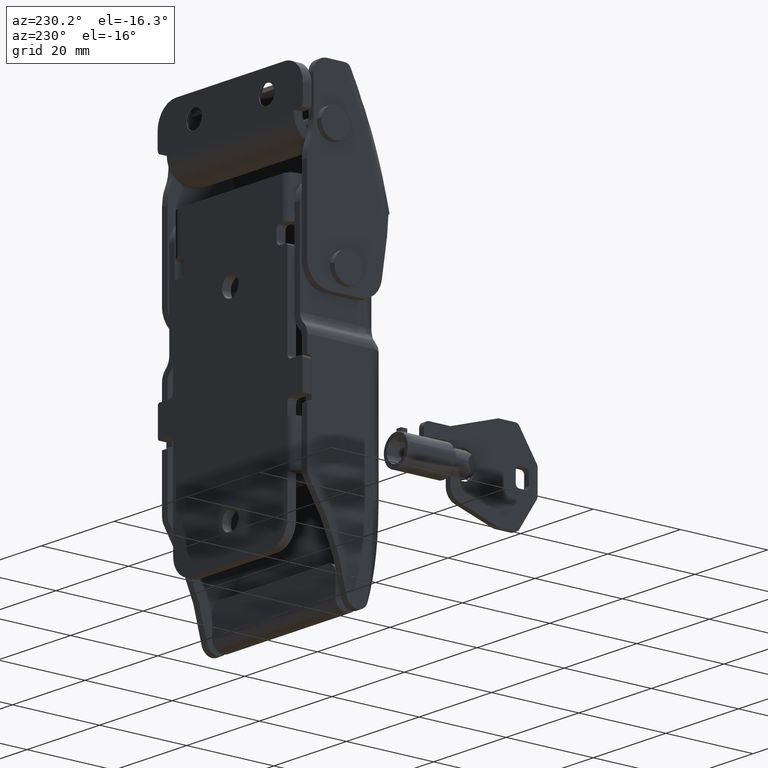
[diagram: clean part render]
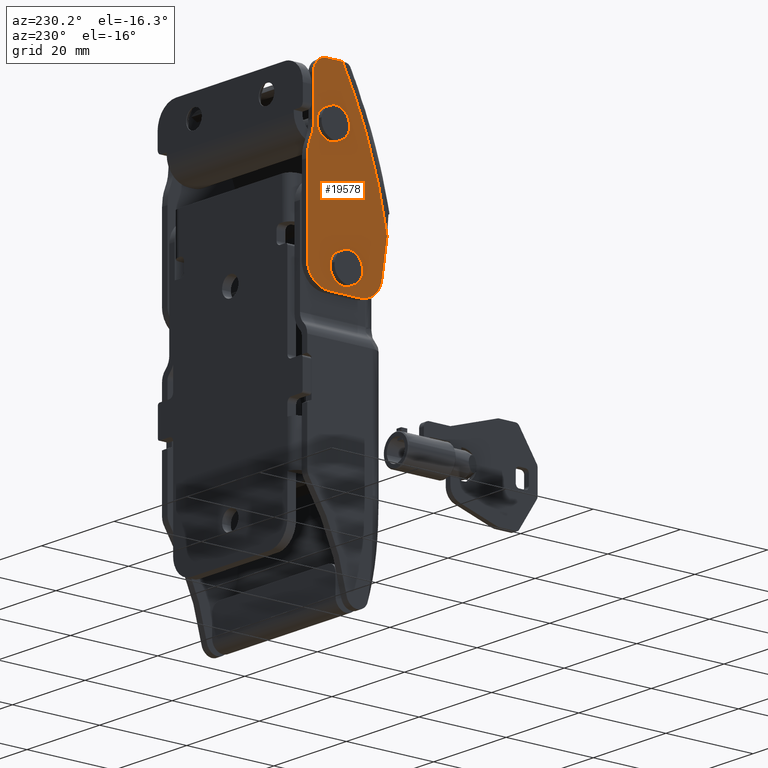
[diagram: same view with one face highlighted and labeled with its STEP entity id]
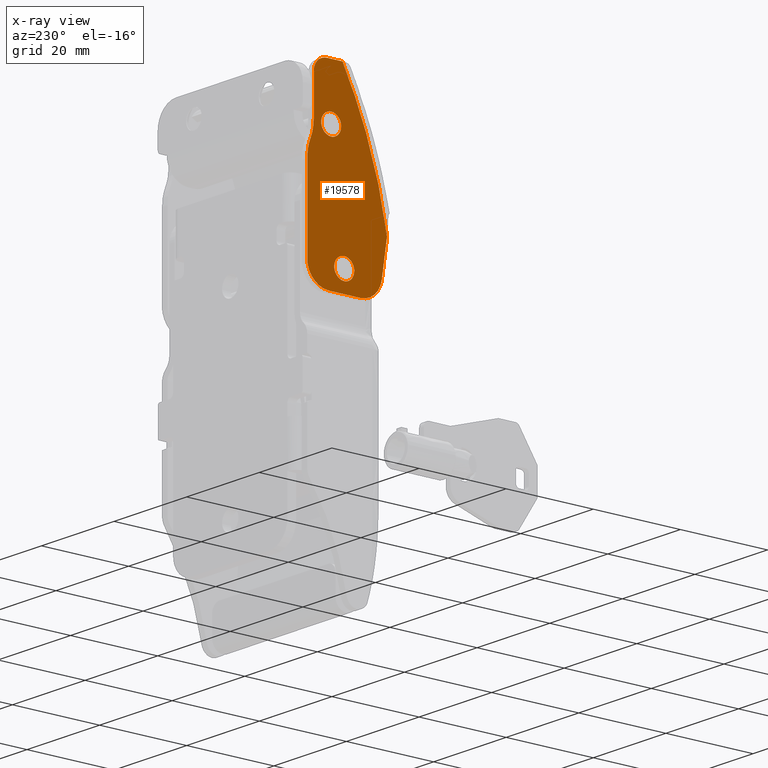
[diagram: x-ray of the same camera — body ghosted, the highlighted face saturated]
A machine part, auxiliary view. The second image highlights one B-rep face of the part: STEP entity #19578.
The next image is the same camera in x-ray: the body ghosted, the highlighted face saturated — about 0% of this face is hidden behind the body in this view.
In plain terms, the highlighted face is a freeform B-spline surface patch.
Its self-contained STEP definition (entity closure, byte-faithful):
#17439=CARTESIAN_POINT('',(-19.999999999997900,-4.217771908400739,26.214503652657989));
#17440=VERTEX_POINT('',#17439);
#17446=CARTESIAN_POINT('',(-19.999999999997900,-6.499984200153731,24.199998057807299));
#17447=VERTEX_POINT('',#17446);
#17448=CARTESIAN_POINT('',(-19.999999999997900,-6.499984200153731,24.199998057807299));
#17449=CARTESIAN_POINT('',(-19.999999999997900,-4.469777420463902,24.199998057807306));
#17450=CARTESIAN_POINT('',(-19.999999999997897,-4.217771908400739,26.214503652657999));
#17458=(BOUNDED_CURVE()B_SPLINE_CURVE(2,(#17448,#17449,#17450),.UNSPECIFIED.,.F.,.U.)B_SPLINE_CURVE_WITH_KNOTS((3,3),(0.500000000000000,0.728526070975252),.UNSPECIFIED.)CURVE()GEOMETRIC_REPRESENTATION_ITEM()RATIONAL_B_SPLINE_CURVE((1.0,0.732265053957067,0.954005430169835))REPRESENTATION_ITEM(''));
#17459=EDGE_CURVE('',#17447,#17440,#17458,.T.);
#17461=CARTESIAN_POINT('',(-19.999999999997900,-8.799896623193202,26.520069090384240));
#17462=VERTEX_POINT('',#17461);
#17463=CARTESIAN_POINT('',(-19.999999999997900,-8.799896623193202,26.520069090384244));
#17464=CARTESIAN_POINT('',(-19.999999999997897,-8.799984200153730,26.510033765625657));
#17465=CARTESIAN_POINT('',(-19.999999999997900,-8.799984200153730,26.499998057807300));
#17466=CARTESIAN_POINT('',(-19.999999999997893,-8.799984200153730,24.199998057807299));
#17467=CARTESIAN_POINT('',(-19.999999999997900,-6.499984200153731,24.199998057807299));
#17475=(BOUNDED_CURVE()B_SPLINE_CURVE(2,(#17463,#17464,#17465,#17466,#17467),.UNSPECIFIED.,.F.,.U.)B_SPLINE_CURVE_WITH_KNOTS((3,2,3),(0.248460105522457,0.250000000000000,0.500000000000000),.UNSPECIFIED.)CURVE()GEOMETRIC_REPRESENTATION_ITEM()RATIONAL_B_SPLINE_CURVE((0.996414027770491,0.998195901399357,1.0,0.707106781186547,1.0))REPRESENTATION_ITEM(''));
#17476=EDGE_CURVE('',#17462,#17447,#17475,.T.);
#17556=CARTESIAN_POINT('',(-19.999999999997900,-6.499984200153731,28.799998057807301));
#17557=VERTEX_POINT('',#17556);
#17558=CARTESIAN_POINT('',(-19.999999999997900,-6.499984200153731,28.799998057807301));
#17559=CARTESIAN_POINT('',(-19.999999999997897,-8.779999982676845,28.799998057807301));
#17560=CARTESIAN_POINT('',(-19.999999999997900,-8.799896623193202,26.520069090384244));
#17568=(BOUNDED_CURVE()B_SPLINE_CURVE(2,(#17558,#17559,#17560),.UNSPECIFIED.,.F.,.U.)B_SPLINE_CURVE_WITH_KNOTS((3,3),(0.0,0.248460105522457),.UNSPECIFIED.)CURVE()GEOMETRIC_REPRESENTATION_ITEM()RATIONAL_B_SPLINE_CURVE((1.0,0.708910879787190,0.996414027770491))REPRESENTATION_ITEM(''));
#17569=EDGE_CURVE('',#17557,#17462,#17568,.T.);
#17571=CARTESIAN_POINT('',(-19.999999999997893,-4.217771908400739,26.214503652657992));
#17572=CARTESIAN_POINT('',(-19.999999999997897,-4.199984200153732,26.356696724110286));
#17573=CARTESIAN_POINT('',(-19.999999999997900,-4.199984200153731,26.499998057807300));
#17574=CARTESIAN_POINT('',(-19.999999999997893,-4.199984200153732,28.799998057807301));
#17575=CARTESIAN_POINT('',(-19.999999999997900,-6.499984200153731,28.799998057807301));
#17583=(BOUNDED_CURVE()B_SPLINE_CURVE(2,(#17571,#17572,#17573,#17574,#17575),.UNSPECIFIED.,.F.,.U.)B_SPLINE_CURVE_WITH_KNOTS((3,2,3),(0.728526070975251,0.750000000000000,1.0),.UNSPECIFIED.)CURVE()GEOMETRIC_REPRESENTATION_ITEM()RATIONAL_B_SPLINE_CURVE((0.954005430169833,0.974841727229479,1.0,0.707106781186547,1.0))REPRESENTATION_ITEM(''));
#17584=EDGE_CURVE('',#17440,#17557,#17583,.T.);
#17811=CARTESIAN_POINT('',(-19.999999999997900,-7.217787708250137,0.214505593932218));
#17812=VERTEX_POINT('',#17811);
#17818=CARTESIAN_POINT('',(-19.999999999997900,-9.500000000003130,-1.800000000918476));
#17819=VERTEX_POINT('',#17818);
#17820=CARTESIAN_POINT('',(-19.999999999997900,-9.500000000003130,-1.800000000918476));
#17821=CARTESIAN_POINT('',(-19.999999999997900,-7.469793220313301,-1.800000000918476));
#17822=CARTESIAN_POINT('',(-19.999999999997897,-7.217787708250137,0.214505593932218));
#17830=(BOUNDED_CURVE()B_SPLINE_CURVE(2,(#17820,#17821,#17822),.UNSPECIFIED.,.F.,.U.)B_SPLINE_CURVE_WITH_KNOTS((3,3),(0.500000000000000,0.728526070975252),.UNSPECIFIED.)CURVE()GEOMETRIC_REPRESENTATION_ITEM()RATIONAL_B_SPLINE_CURVE((1.0,0.732265053957067,0.954005430169835))REPRESENTATION_ITEM(''));
#17831=EDGE_CURVE('',#17819,#17812,#17830,.T.);
#17833=CARTESIAN_POINT('',(-19.999999999997900,-11.799912423042599,0.520071031658468));
#17834=VERTEX_POINT('',#17833);
#17835=CARTESIAN_POINT('',(-19.999999999997900,-11.799912423042608,0.520071031658468));
#17836=CARTESIAN_POINT('',(-19.999999999997897,-11.800000000003129,0.510035706899874));
#17837=CARTESIAN_POINT('',(-19.999999999997900,-11.800000000003131,0.499999999081524));
#17838=CARTESIAN_POINT('',(-19.999999999997893,-11.800000000003131,-1.800000000918476));
#17839=CARTESIAN_POINT('',(-19.999999999997900,-9.500000000003130,-1.800000000918476));
#17847=(BOUNDED_CURVE()B_SPLINE_CURVE(2,(#17835,#17836,#17837,#17838,#17839),.UNSPECIFIED.,.F.,.U.)B_SPLINE_CURVE_WITH_KNOTS((3,2,3),(0.248460105522457,0.250000000000000,0.500000000000000),.UNSPECIFIED.)CURVE()GEOMETRIC_REPRESENTATION_ITEM()RATIONAL_B_SPLINE_CURVE((0.996414027770491,0.998195901399357,1.0,0.707106781186547,1.0))REPRESENTATION_ITEM(''));
#17848=EDGE_CURVE('',#17834,#17819,#17847,.T.);
#17928=CARTESIAN_POINT('',(-19.999999999997900,-9.500000000003130,2.799999999081524));
#17929=VERTEX_POINT('',#17928);
#17930=CARTESIAN_POINT('',(-19.999999999997900,-9.500000000003130,2.799999999081524));
#17931=CARTESIAN_POINT('',(-19.999999999997893,-11.780015782526243,2.799999999081524));
#17932=CARTESIAN_POINT('',(-19.999999999997893,-11.799912423042608,0.520071031658468));
#17940=(BOUNDED_CURVE()B_SPLINE_CURVE(2,(#17930,#17931,#17932),.UNSPECIFIED.,.F.,.U.)B_SPLINE_CURVE_WITH_KNOTS((3,3),(0.0,0.248460105522457),.UNSPECIFIED.)CURVE()GEOMETRIC_REPRESENTATION_ITEM()RATIONAL_B_SPLINE_CURVE((1.0,0.708910879787190,0.996414027770491))REPRESENTATION_ITEM(''));
#17941=EDGE_CURVE('',#17929,#17834,#17940,.T.);
#17943=CARTESIAN_POINT('',(-19.999999999997900,-7.217787708250137,0.214505593932218));
#17944=CARTESIAN_POINT('',(-19.999999999997900,-7.200000000003129,0.356698665384508));
#17945=CARTESIAN_POINT('',(-19.999999999997900,-7.200000000003129,0.499999999081524));
#17946=CARTESIAN_POINT('',(-19.999999999997893,-7.200000000003130,2.799999999081523));
#17947=CARTESIAN_POINT('',(-19.999999999997900,-9.500000000003130,2.799999999081524));
#17955=(BOUNDED_CURVE()B_SPLINE_CURVE(2,(#17943,#17944,#17945,#17946,#17947),.UNSPECIFIED.,.F.,.U.)B_SPLINE_CURVE_WITH_KNOTS((3,2,3),(0.728526070975252,0.750000000000000,1.0),.UNSPECIFIED.)CURVE()GEOMETRIC_REPRESENTATION_ITEM()RATIONAL_B_SPLINE_CURVE((0.954005430169834,0.974841727229479,1.0,0.707106781186547,1.0))REPRESENTATION_ITEM(''));
#17956=EDGE_CURVE('',#17812,#17929,#17955,.T.);
#18290=CARTESIAN_POINT('',(-19.999999999997950,-9.095438882026212,38.499999999583999));
#18291=VERTEX_POINT('',#18290);
#18303=CARTESIAN_POINT('',(-19.999999999997950,-19.328992464394751,8.237148756944150));
#18304=VERTEX_POINT('',#18303);
#18305=CARTESIAN_POINT('',(-19.999999999997950,-19.328992464394791,8.237148756944185));
#18306=CARTESIAN_POINT('',(-19.999999999997947,-16.698901395927518,24.209461159945786));
#18307=CARTESIAN_POINT('',(-19.999999999997950,-9.095438882026240,38.499999999584013));
#18315=(BOUNDED_CURVE()B_SPLINE_CURVE(2,(#18305,#18306,#18307),.UNSPECIFIED.,.F.,.U.)CURVE()GEOMETRIC_REPRESENTATION_ITEM()QUASI_UNIFORM_CURVE()RATIONAL_B_SPLINE_CURVE((1.0,0.986763830909010,1.0))REPRESENTATION_ITEM(''));
#18316=EDGE_CURVE('',#18304,#18291,#18315,.T.);
#19045=CARTESIAN_POINT('',(-19.999999999997900,-18.128313242286350,0.072530046607573));
#19046=VERTEX_POINT('',#19045);
#19047=CARTESIAN_POINT('',(-19.999999999997900,-18.128313242286350,0.072530046607573));
#19048=CARTESIAN_POINT('',(-19.999999999997950,-19.328992464394751,8.237148756944150));
#19049=QUASI_UNIFORM_CURVE('',1,(#19047,#19048),.UNSPECIFIED.,.F.,.U.);
#19050=EDGE_CURVE('',#19046,#18304,#19049,.T.);
#19081=CARTESIAN_POINT('',(-19.999999999997900,-13.181517565462061,-4.200000000918379));
#19082=VERTEX_POINT('',#19081);
#19104=CARTESIAN_POINT('',(-19.999999999997900,-18.128313242286328,0.072530046607577));
#19105=CARTESIAN_POINT('',(-19.999999999997897,-17.500000000003137,-4.200000000918294));
#19106=CARTESIAN_POINT('',(-19.999999999997900,-13.181517565462061,-4.200000000918379));
#19114=(BOUNDED_CURVE()B_SPLINE_CURVE(2,(#19104,#19105,#19106),.UNSPECIFIED.,.F.,.U.)CURVE()GEOMETRIC_REPRESENTATION_ITEM()QUASI_UNIFORM_CURVE()RATIONAL_B_SPLINE_CURVE((1.0,0.756800498974078,1.0))REPRESENTATION_ITEM(''));
#19115=EDGE_CURVE('',#19046,#19082,#19114,.T.);
#19133=CARTESIAN_POINT('',(-19.999999999997900,-6.000000000003010,-4.200000000918295));
#19134=VERTEX_POINT('',#19133);
#19135=CARTESIAN_POINT('',(-19.999999999997900,-6.000000000003010,-4.200000000918295));
#19136=CARTESIAN_POINT('',(-19.999999999997900,-13.181517565462061,-4.200000000918379));
#19137=QUASI_UNIFORM_CURVE('',1,(#19135,#19136),.UNSPECIFIED.,.F.,.U.);
#19138=EDGE_CURVE('',#19134,#19082,#19137,.T.);
#19162=CARTESIAN_POINT('',(-19.999999999997900,-1.000000000003012,0.799999999081706));
#19163=VERTEX_POINT('',#19162);
#19185=CARTESIAN_POINT('',(-19.999999999997900,-6.000000000003010,-4.200000000918294));
#19186=CARTESIAN_POINT('',(-19.999999999997893,-1.000000000003010,-4.200000000918295));
#19187=CARTESIAN_POINT('',(-19.999999999997900,-1.000000000003010,0.799999999081706));
#19195=(BOUNDED_CURVE()B_SPLINE_CURVE(2,(#19185,#19186,#19187),.UNSPECIFIED.,.F.,.U.)CURVE()GEOMETRIC_REPRESENTATION_ITEM()QUASI_UNIFORM_CURVE()RATIONAL_B_SPLINE_CURVE((1.0,0.707106781186548,1.0))REPRESENTATION_ITEM(''));
#19196=EDGE_CURVE('',#19134,#19163,#19195,.T.);
#19214=CARTESIAN_POINT('',(-19.999999999997900,-1.000000000003012,19.247516758828699));
#19215=VERTEX_POINT('',#19214);
#19216=CARTESIAN_POINT('',(-19.999999999997900,-1.000000000003012,19.247516758828699));
#19217=CARTESIAN_POINT('',(-19.999999999997900,-1.000000000003012,0.799999999081706));
#19218=QUASI_UNIFORM_CURVE('',1,(#19216,#19217),.UNSPECIFIED.,.F.,.U.);
#19219=EDGE_CURVE('',#19215,#19163,#19218,.T.);
#19243=CARTESIAN_POINT('',(-19.999999999997900,-1.749985420025010,23.031611810782049));
#19244=VERTEX_POINT('',#19243);
#19266=CARTESIAN_POINT('',(-19.999999999997900,-1.000000000003011,19.247516758828699));
#19267=CARTESIAN_POINT('',(-19.999999999997900,-1.003060695732772,21.213279026142633));
#19268=CARTESIAN_POINT('',(-19.999999999997900,-1.749985420025010,23.031611810782049));
#19276=(BOUNDED_CURVE()B_SPLINE_CURVE(2,(#19266,#19267,#19268),.UNSPECIFIED.,.F.,.U.)CURVE()GEOMETRIC_REPRESENTATION_ITEM()QUASI_UNIFORM_CURVE()RATIONAL_B_SPLINE_CURVE((1.0,0.981221364559925,1.0))REPRESENTATION_ITEM(''));
#19277=EDGE_CURVE('',#19215,#19244,#19276,.T.);
#19312=CARTESIAN_POINT('',(-19.999999999997900,-2.499982961296440,26.831283334496501));
#19313=VERTEX_POINT('',#19312);
#19314=CARTESIAN_POINT('',(-19.999999999997900,-2.499982961296440,26.831283334496501));
#19315=CARTESIAN_POINT('',(-19.999999999997900,-2.499984238560078,24.857428249614678));
#19316=CARTESIAN_POINT('',(-19.999999999997900,-1.749985420025008,23.031611810782049));
#19324=(BOUNDED_CURVE()B_SPLINE_CURVE(2,(#19314,#19315,#19316),.UNSPECIFIED.,.F.,.U.)CURVE()GEOMETRIC_REPRESENTATION_ITEM()QUASI_UNIFORM_CURVE()RATIONAL_B_SPLINE_CURVE((1.0,0.981070843517375,1.0))REPRESENTATION_ITEM(''));
#19325=EDGE_CURVE('',#19313,#19244,#19324,.T.);
#19348=CARTESIAN_POINT('',(-19.999999999997900,-2.499977351828020,35.499999999578250));
#19349=VERTEX_POINT('',#19348);
#19350=CARTESIAN_POINT('',(-19.999999999997900,-2.499977351828020,35.499999999578250));
#19351=CARTESIAN_POINT('',(-19.999999999997900,-2.499982961296440,26.831283334496501));
#19352=QUASI_UNIFORM_CURVE('',1,(#19350,#19351),.UNSPECIFIED.,.F.,.U.);
#19353=EDGE_CURVE('',#19349,#19313,#19352,.T.);
#19377=CARTESIAN_POINT('',(-19.999999999997900,-5.499977351825420,38.499999999580801));
#19378=VERTEX_POINT('',#19377);
#19402=CARTESIAN_POINT('',(-19.999999999997900,-2.499977351828020,35.499999999578250));
#19403=CARTESIAN_POINT('',(-19.999999999997897,-2.499977351826962,36.742640686698280));
#19404=CARTESIAN_POINT('',(-19.999999999997900,-3.378657008267475,37.621320343139537));
#19405=CARTESIAN_POINT('',(-19.999999999997897,-4.257336664707987,38.499999999580808));
#19406=CARTESIAN_POINT('',(-19.999999999997900,-5.499977351825420,38.499999999580801));
#19414=(BOUNDED_CURVE()B_SPLINE_CURVE(2,(#19402,#19403,#19404,#19405,#19406),.UNSPECIFIED.,.F.,.U.)B_SPLINE_CURVE_WITH_KNOTS((3,2,3),(0.0,0.500000000000000,1.0),.UNSPECIFIED.)CURVE()GEOMETRIC_REPRESENTATION_ITEM()RATIONAL_B_SPLINE_CURVE((1.0,0.923879532511205,1.0,0.923879532511205,1.0))REPRESENTATION_ITEM(''));
#19415=EDGE_CURVE('',#19349,#19378,#19414,.T.);
#19544=CARTESIAN_POINT('',(-19.999999999997950,-20.244526118644369,40.632864916848213));
#19545=CARTESIAN_POINT('',(-19.999999999997950,-0.084466345753390,40.632864916848213));
#19546=CARTESIAN_POINT('',(-19.999999999997950,-20.244526118644369,-6.332866063485838));
#19547=CARTESIAN_POINT('',(-19.999999999997950,-0.084466345753390,-6.332866063485838));
#19548=B_SPLINE_SURFACE_WITH_KNOTS('',1,1,((#19544,#19546),(#19545,#19547)),.UNSPECIFIED.,.F.,.F.,.U.,(2,2),(2,2),(0.0,20.160059772890978),(0.0,46.965730980334037),.UNSPECIFIED.);
#19549=ORIENTED_EDGE('',*,*,#19050,.T.);
#19550=ORIENTED_EDGE('',*,*,#18316,.T.);
#19551=CARTESIAN_POINT('',(-19.999999999997950,-9.095438882026212,38.499999999583999));
#19552=CARTESIAN_POINT('',(-19.999999999997900,-5.499977351825420,38.499999999580801));
#19553=QUASI_UNIFORM_CURVE('',1,(#19551,#19552),.UNSPECIFIED.,.F.,.U.);
#19554=EDGE_CURVE('',#18291,#19378,#19553,.T.);
#19555=ORIENTED_EDGE('',*,*,#19554,.T.);
#19556=ORIENTED_EDGE('',*,*,#19415,.F.);
#19557=ORIENTED_EDGE('',*,*,#19353,.T.);
#19558=ORIENTED_EDGE('',*,*,#19325,.T.);
#19559=ORIENTED_EDGE('',*,*,#19277,.F.);
#19560=ORIENTED_EDGE('',*,*,#19219,.T.);
#19561=ORIENTED_EDGE('',*,*,#19196,.F.);
#19562=ORIENTED_EDGE('',*,*,#19138,.T.);
#19563=ORIENTED_EDGE('',*,*,#19115,.F.);
#19564=EDGE_LOOP('',(#19549,#19550,#19555,#19556,#19557,#19558,#19559,#19560,#19561,#19562,#19563));
#19565=FACE_OUTER_BOUND('',#19564,.T.);
#19566=ORIENTED_EDGE('',*,*,#17941,.T.);
#19567=ORIENTED_EDGE('',*,*,#17848,.T.);
#19568=ORIENTED_EDGE('',*,*,#17831,.T.);
#19569=ORIENTED_EDGE('',*,*,#17956,.T.);
#19570=EDGE_LOOP('',(#19566,#19567,#19568,#19569));
#19571=FACE_BOUND('',#19570,.T.);
#19572=ORIENTED_EDGE('',*,*,#17569,.T.);
#19573=ORIENTED_EDGE('',*,*,#17476,.T.);
#19574=ORIENTED_EDGE('',*,*,#17459,.T.);
#19575=ORIENTED_EDGE('',*,*,#17584,.T.);
#19576=EDGE_LOOP('',(#19572,#19573,#19574,#19575));
#19577=FACE_BOUND('',#19576,.T.);
#19578=ADVANCED_FACE('',(#19565,#19571,#19577),#19548,.T.);